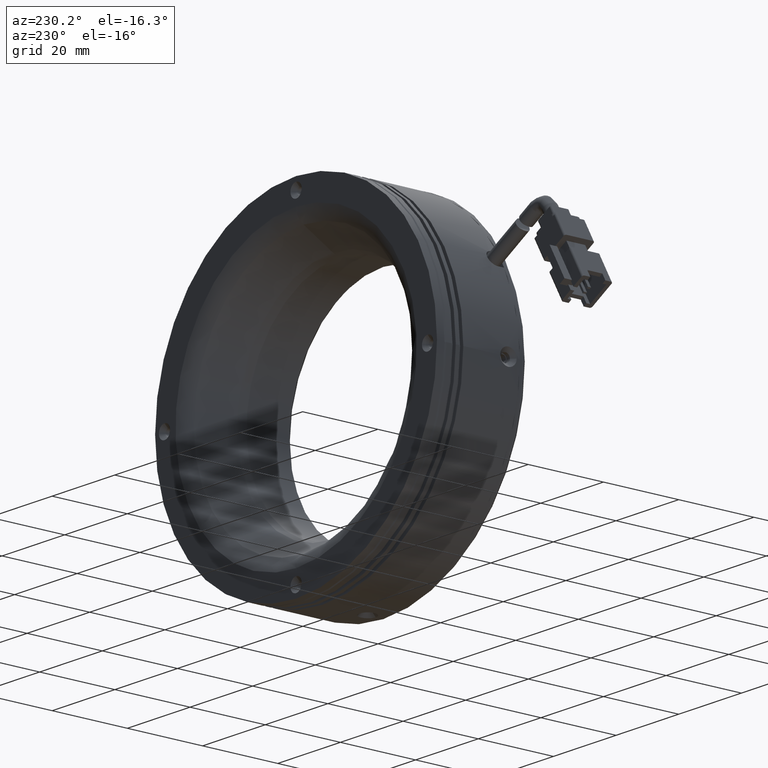
[diagram: clean part render]
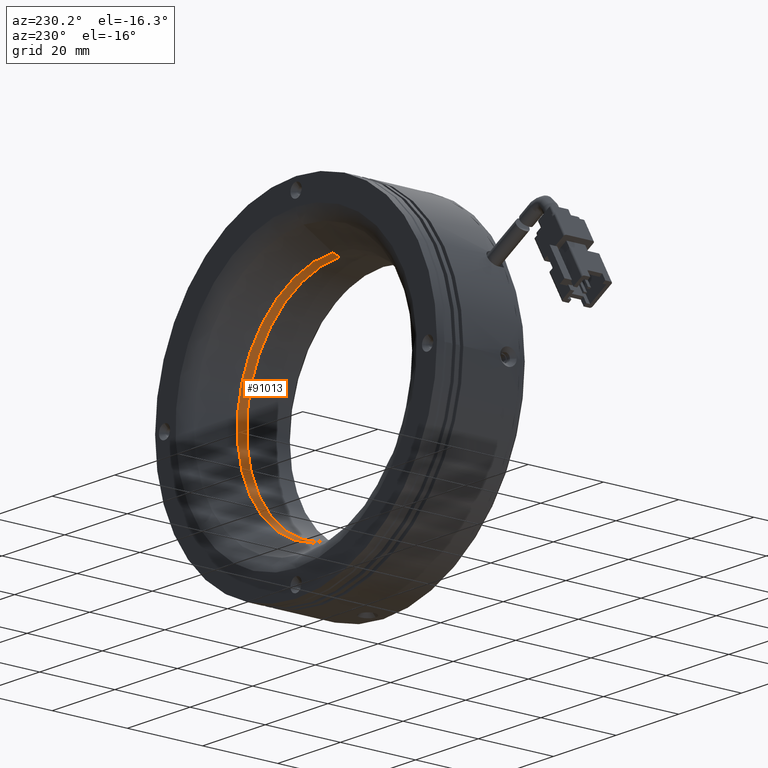
[diagram: same view with one face highlighted and labeled with its STEP entity id]
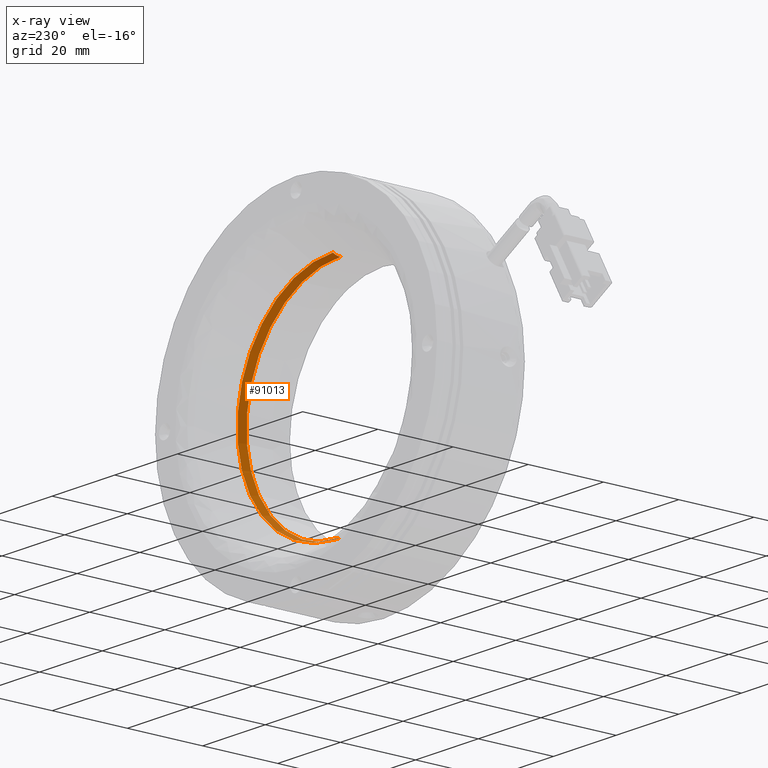
[diagram: x-ray of the same camera — body ghosted, the highlighted face saturated]
A machine part, auxiliary view. The second image highlights one B-rep face of the part: STEP entity #91013.
The next image is the same camera in x-ray: the body ghosted, the highlighted face saturated — about 0% of this face is hidden behind the body in this view.
In plain terms, the highlighted face is a freeform B-spline surface patch.
Its self-contained STEP definition (entity closure, byte-faithful):
#3055 = EDGE_CURVE ( 'NONE', #71462, #68793, #104730, .T. ) ;
#3850 = EDGE_LOOP ( 'NONE', ( #112835, #23347, #115669, #25095 ) ) ;
#4815 = CARTESIAN_POINT ( 'NONE',  ( 51.37667247461708800, 17.88560255269061000, -29.99999999999998200 ) ) ;
#9120 = DIRECTION ( 'NONE',  ( -1.000000000000000000, 0.0000000000000000000, 1.224646799147353200E-016 ) ) ;
#14187 = VERTEX_POINT ( 'NONE', #48481 ) ;
#14605 = CARTESIAN_POINT ( 'NONE',  ( -8.623327525382890700, 17.88560255269061400, 30.00000000000000400 ) ) ;
#16843 = EDGE_CURVE ( 'NONE', #122236, #71462, #122809, .T. ) ;
#23347 = ORIENTED_EDGE ( 'NONE', *, *, #92941, .T. ) ;
#24362 = CARTESIAN_POINT ( 'NONE',  ( 51.37667247461708800, 17.17937570147888600, -29.99999999999998200 ) ) ;
#25095 = ORIENTED_EDGE ( 'NONE', *, *, #3055, .T. ) ;
#33618 = CARTESIAN_POINT ( 'NONE',  ( 52.44846924434157400, 19.17937570147888200, 30.53589838486225400 ) ) ;
#34058 = CARTESIAN_POINT ( 'NONE',  ( -8.623327525382890700, 17.17937570147888600, 30.00000000000001100 ) ) ;
#41844 = DIRECTION ( 'NONE',  ( 1.000000000000000000, 0.0000000000000000000, 0.0000000000000000000 ) ) ;
#42036 = DIRECTION ( 'NONE',  ( 0.0000000000000000000, -1.000000000000000000, 0.0000000000000000000 ) ) ;
#43334 = CARTESIAN_POINT ( 'NONE',  ( -8.623327525382885400, 18.56776530749483500, -30.18278495925636300 ) ) ;
#45736 = DIRECTION ( 'NONE',  ( -0.0000000000000000000, 1.000000000000000000, -0.0000000000000000000 ) ) ;
#48481 = CARTESIAN_POINT ( 'NONE',  ( -8.623327525382890700, 19.17937570147887500, 30.53589838486225000 ) ) ;
#49335 = EDGE_CURVE ( 'NONE', #14187, #68793, #69220, .T. ) ;
#52600 = CARTESIAN_POINT ( 'NONE',  ( -8.623327525382887200, 19.17937570147887900, -30.53589838486223200 ) ) ;
#53007 = CARTESIAN_POINT ( 'NONE',  ( 51.74224239312986400, 18.56776530749483100, 30.18278495925639100 ) ) ;
#57438 = CARTESIAN_POINT ( 'NONE',  ( -8.623327525382887200, 17.17937570147888600, -29.99999999999999300 ) ) ;
#59798 = AXIS2_PLACEMENT_3D ( 'NONE', #99842, #41844, #109606 ) ;
#62768 = CARTESIAN_POINT ( 'NONE',  ( -8.623327525382885400, 17.88560255269061400, -29.99999999999998900 ) ) ;
#67036 = CARTESIAN_POINT ( 'NONE',  ( -8.623327525382887200, 17.17937570147888600, 34.00000000000000700 ) ) ;
#68793 = VERTEX_POINT ( 'NONE', #108282 ) ;
#69220 = CIRCLE ( 'NONE', #122862, 3.999999999999996400 ) ;
#71462 = VERTEX_POINT ( 'NONE', #57438 ) ;
#72442 = CARTESIAN_POINT ( 'NONE',  ( 51.37667247461708800, 17.88560255269061000, 30.00000000000001400 ) ) ;
#73607 = FACE_OUTER_BOUND ( 'NONE', #3850, .T. ) ;
#76734 = DIRECTION ( 'NONE',  ( 0.0000000000000000000, 0.0000000000000000000, 1.000000000000000000 ) ) ;
#82196 = CARTESIAN_POINT ( 'NONE',  ( -8.623327525382887200, 17.17937570147888600, -29.99999999999998900 ) ) ;
#91013 = ADVANCED_FACE ( 'NONE', ( #73607 ), #112126, .T. ) ;
#91592 = CARTESIAN_POINT ( 'NONE',  ( 52.44846924434158800, 19.17937570147888200, -30.53589838486222500 ) ) ;
#92003 = CARTESIAN_POINT ( 'NONE',  ( 51.37667247461708800, 17.17937570147888600, 30.00000000000000700 ) ) ;
#92941 = EDGE_CURVE ( 'NONE', #14187, #122236, #121132, .T. ) ;
#94129 = AXIS2_PLACEMENT_3D ( 'NONE', #103787, #45736, #113512 ) ;
#99842 = CARTESIAN_POINT ( 'NONE',  ( -8.623327525382890700, 17.17937570147888600, -33.99999999999998600 ) ) ;
#100033 = CARTESIAN_POINT ( 'NONE',  ( -8.623327525382890700, 17.17937570147888600, 1.040834085586084300E-014 ) ) ;
#101348 = CARTESIAN_POINT ( 'NONE',  ( -8.623327525382890700, 19.17937570147887900, 30.53589838486225400 ) ) ;
#101995 = CARTESIAN_POINT ( 'NONE',  ( -8.623327525382887200, 19.17937570147887900, -30.53589838486222900 ) ) ;
#103787 = CARTESIAN_POINT ( 'NONE',  ( -8.623327525382890700, 19.17937570147887900, 1.040834085586084300E-014 ) ) ;
#104730 = CIRCLE ( 'NONE', #109318, 30.00000000000000000 ) ;
#108282 = CARTESIAN_POINT ( 'NONE',  ( -8.623327525382890700, 17.17937570147888600, 30.00000000000001400 ) ) ;
#109318 = AXIS2_PLACEMENT_3D ( 'NONE', #100033, #42036, #109804 ) ;
#109606 = DIRECTION ( 'NONE',  ( 0.0000000000000000000, 0.0000000000000000000, -1.000000000000000000 ) ) ;
#109804 = DIRECTION ( 'NONE',  ( 0.0000000000000000000, 0.0000000000000000000, -1.000000000000000000 ) ) ;
#111094 = CARTESIAN_POINT ( 'NONE',  ( 51.74224239312986400, 18.56776530749483100, -30.18278495925636300 ) ) ;
#112126 =( BOUNDED_SURFACE ( )  B_SPLINE_SURFACE ( 3, 3, ( 
 ( #52600, #91592, #33618, #101348 ),
 ( #43334, #111094, #53007, #120817 ),
 ( #62768, #4815, #72442, #14605 ),
 ( #82196, #24362, #92003, #34058 ) ),
 .UNSPECIFIED., .F., .F., .F. ) 
 B_SPLINE_SURFACE_WITH_KNOTS ( ( 4, 4 ),
 ( 4, 4 ),
 ( 0.0000000000000000000, 1.000000000000000000 ),
 ( 0.0000000000000000000, 1.000000000000000000 ),
 .UNSPECIFIED. ) 
 GEOMETRIC_REPRESENTATION_ITEM ( )  RATIONAL_B_SPLINE_SURFACE ( (
 ( 1.000000000000000000, 0.3333333333333334300, 0.3333333333333334300, 1.000000000000000000),
 ( 0.9772838841927123900, 0.3257612947309042100, 0.3257612947309042100, 0.9772838841927123900),
 ( 0.9772838841927123900, 0.3257612947309042100, 0.3257612947309042100, 0.9772838841927123900),
 ( 1.000000000000000000, 0.3333333333333334300, 0.3333333333333334300, 1.000000000000000000) ) ) 
 REPRESENTATION_ITEM ( '' )  SURFACE ( )  );
#112835 = ORIENTED_EDGE ( 'NONE', *, *, #49335, .F. ) ;
#113512 = DIRECTION ( 'NONE',  ( 0.0000000000000000000, -1.136186303813987500E-016, 1.000000000000000000 ) ) ;
#115669 = ORIENTED_EDGE ( 'NONE', *, *, #16843, .T. ) ;
#120817 = CARTESIAN_POINT ( 'NONE',  ( -8.623327525382890700, 18.56776530749483500, 30.18278495925638800 ) ) ;
#121132 = CIRCLE ( 'NONE', #94129, 30.53589838486223900 ) ;
#122236 = VERTEX_POINT ( 'NONE', #101995 ) ;
#122809 = CIRCLE ( 'NONE', #59798, 4.000000000000003600 ) ;
#122862 = AXIS2_PLACEMENT_3D ( 'NONE', #67036, #9120, #76734 ) ;